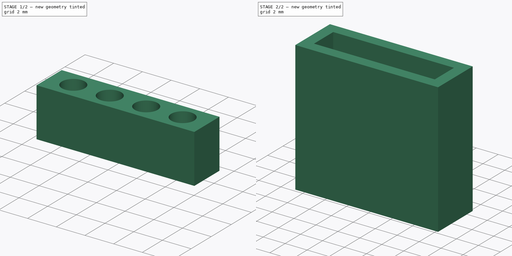
[diagram: build sequence overview — one tinted view per stage of 2, left to right]
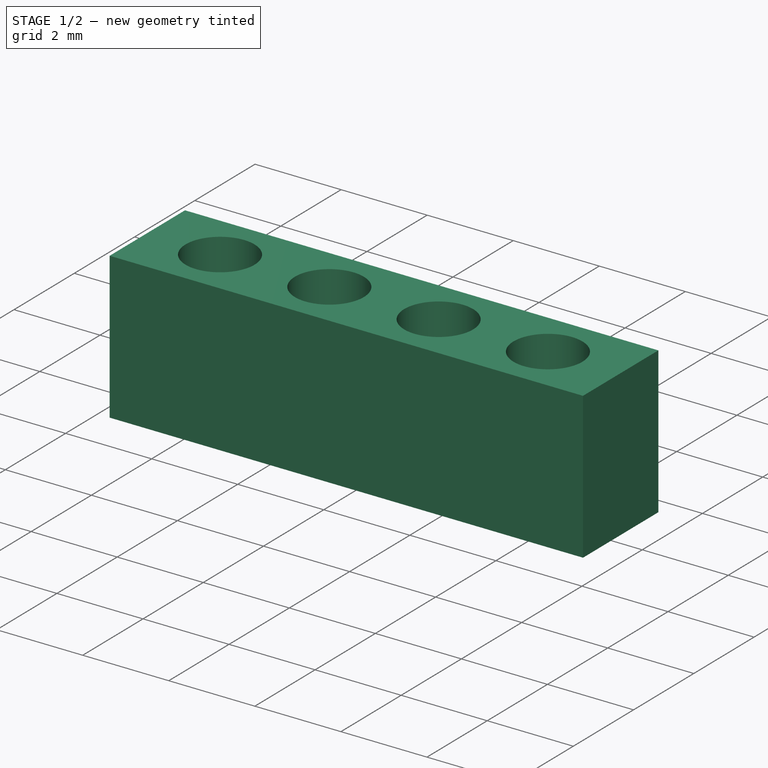
[diagram: stage 1 of 2 — iso view after this stage's code; geometry added in this stage tinted green]
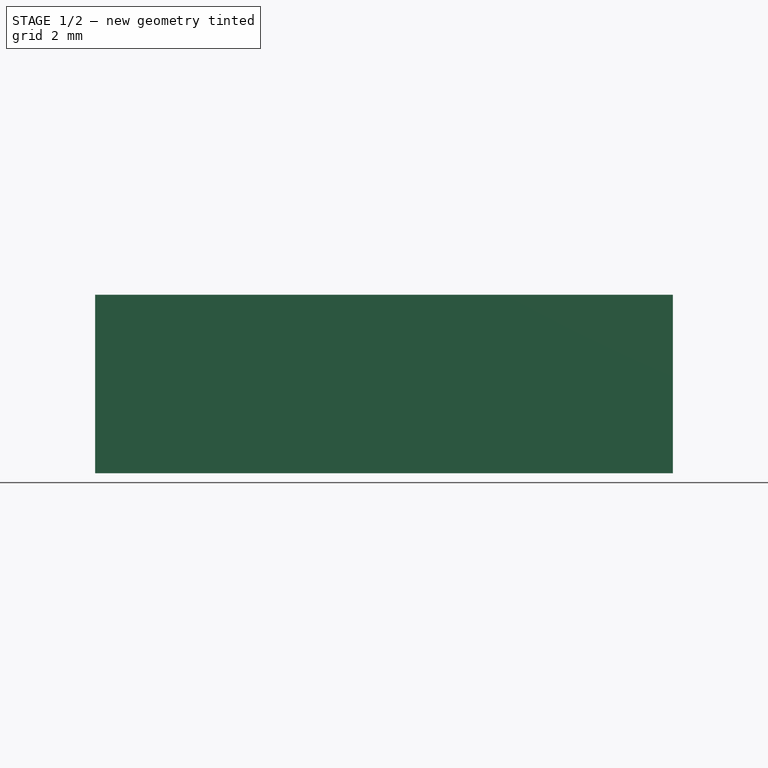
[diagram: stage 1 of 2 — front view after this stage's code; geometry added in this stage tinted green]
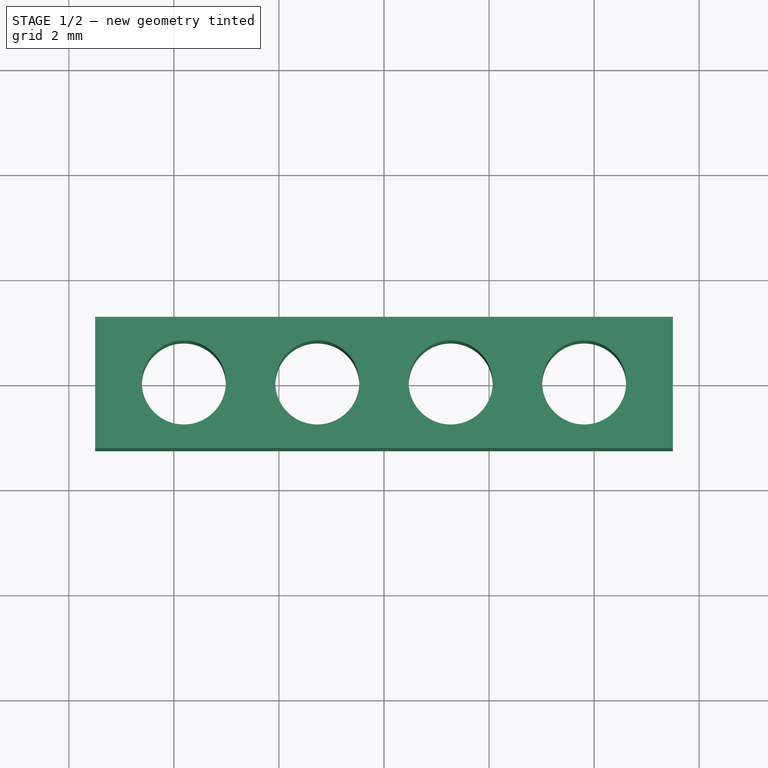
[diagram: stage 1 of 2 — top view after this stage's code; geometry added in this stage tinted green]
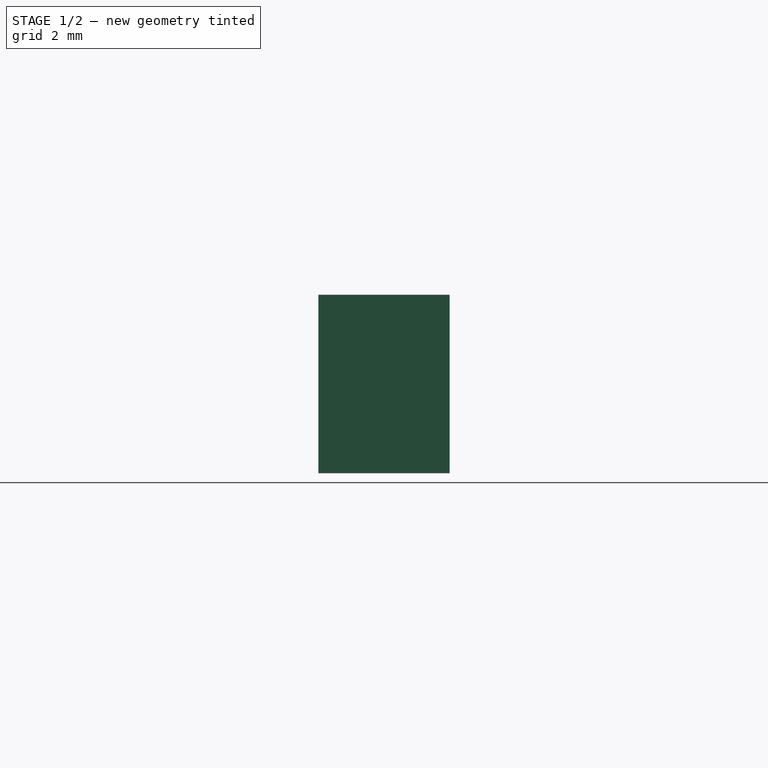
[diagram: stage 1 of 2 — right view after this stage's code; geometry added in this stage tinted green]
FCSTD DOCUMENT  (FreeCAD 0.20R29603 (Git))
Label: mir_oled
License: All rights reserved
LicenseURL: http://en.wikipedia.org/wiki/All_rights_reserved
objects: Sketcher::SketchObject×2, PartDesign::Pad×2, PartDesign::Body×1
note: 7 computed .brp shape members not serialized (recipe doc carries the construction recipe); baked Part::Feature solids carry a one-line shape summary decoded from their .brp

FEATURE [Sketcher::SketchObject] Sketch
  FullyConstrained = true
  MapMode = 5
  Support = -> [XY_Plane]
  sketch-geometry (8):
    g0: Circle CenterX=-1.27 CenterY=0 CenterZ=0 NormalX=0 NormalY=0 NormalZ=1 AngleXU=0 Radius=0.8
    g1: LineSegment StartX=-5.5 StartY=-1.25 StartZ=0 EndX=5.5 EndY=-1.25 EndZ=0
    g2: LineSegment StartX=5.5 StartY=-1.25 StartZ=0 EndX=5.5 EndY=1.25 EndZ=0
    g3: LineSegment StartX=5.5 StartY=1.25 StartZ=0 EndX=-5.5 EndY=1.25 EndZ=0
    g4: LineSegment StartX=-5.5 StartY=1.25 StartZ=0 EndX=-5.5 EndY=-1.25 EndZ=0
    g5: Circle CenterX=1.27 CenterY=0 CenterZ=0 NormalX=0 NormalY=0 NormalZ=1 AngleXU=0 Radius=0.8
    g6: Circle CenterX=3.81 CenterY=0 CenterZ=0 NormalX=0 NormalY=0 NormalZ=1 AngleXU=0 Radius=0.8
    g7: Circle CenterX=-3.81 CenterY=0 CenterZ=0 NormalX=0 NormalY=0 NormalZ=1 AngleXU=0 Radius=0.8
  constraints (22):
    c: Diameter(g0) = 1.6
    c: Coincident(g1,g2)
    c: Coincident(g2,g3)
    c: Coincident(g3,g4)
    c: Coincident(g4,g1)
    c: Horizontal(g3)
    c: Vertical(g2)
    c: DistanceX(g1,g1) = 11
    c: DistanceY(g4,g4) = 2.5
    c: Symmetric(g3,g1,g-1)
    c: Symmetric(g1,g1,g-2)
    c: DistanceX(g0,g-1) = 1.27
    c: PointOnObject(g5,g-1)
    c: PointOnObject(g6,g-1)
    c: PointOnObject(g7,g-1)
    c: Equal(g0,g5)
    c: Equal(g5,g6)
    c: Equal(g6,g7)
    c: DistanceX(g7,g0) = 2.54
    c: DistanceX(g0,g5) = 2.54
    c: DistanceX(g5,g6) = 2.54
    c: Horizontal(g0,g-1)
FEATURE [PartDesign::Pad] Pad
  Direction = (0,0,1)
  Length = 3.4
  Length2 = 10
  Profile = -> Sketch
  ReferenceAxis = -> Sketch [N_Axis]
  Type = 0
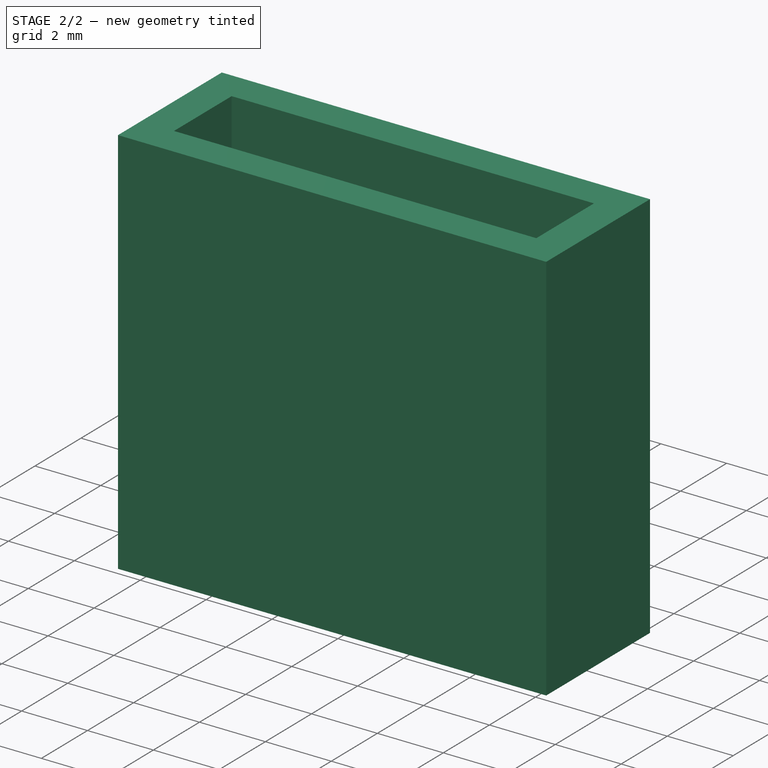
[diagram: stage 2 of 2 — iso view after this stage's code; geometry added in this stage tinted green]
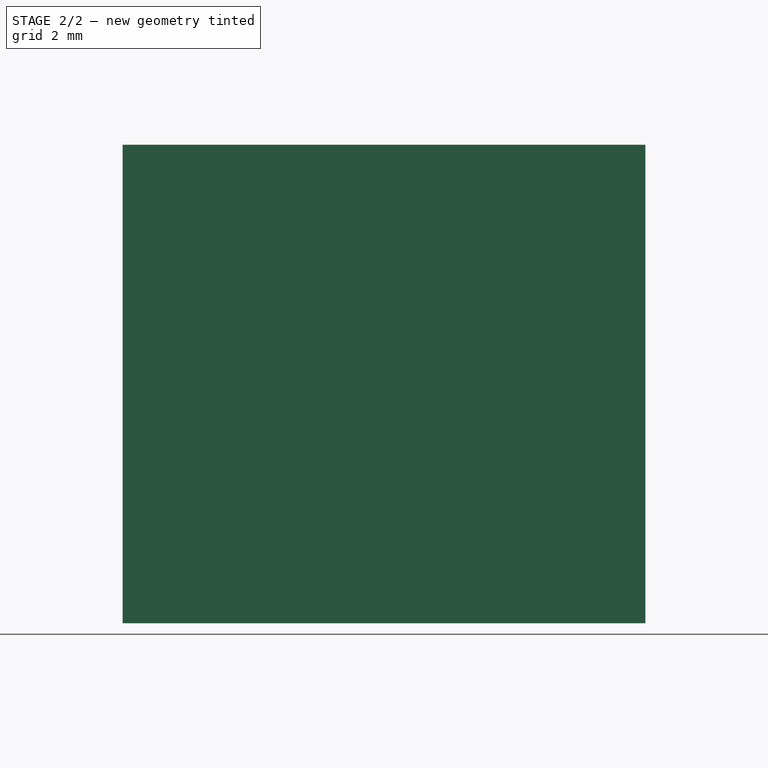
[diagram: stage 2 of 2 — front view after this stage's code; geometry added in this stage tinted green]
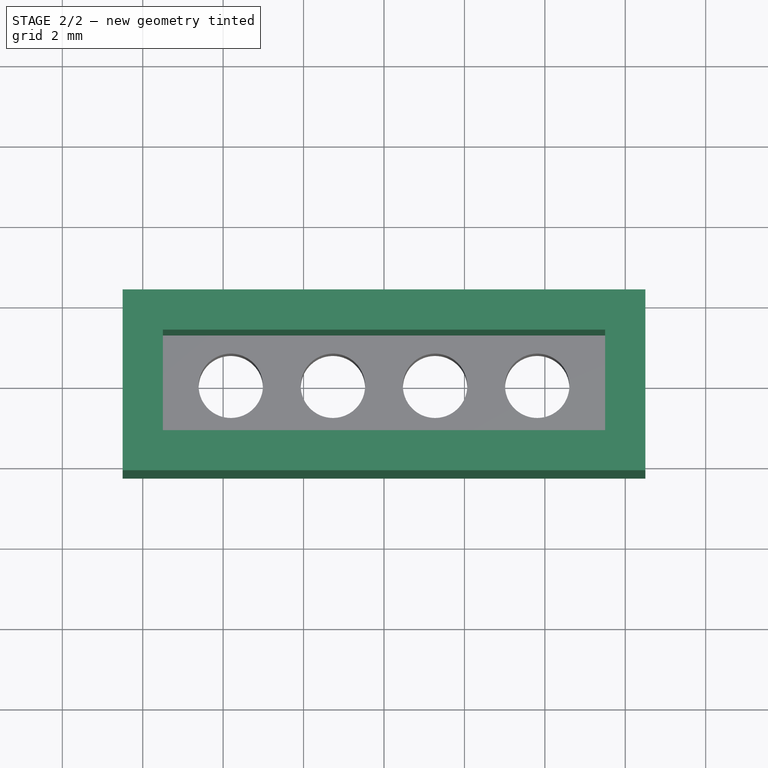
[diagram: stage 2 of 2 — top view after this stage's code; geometry added in this stage tinted green]
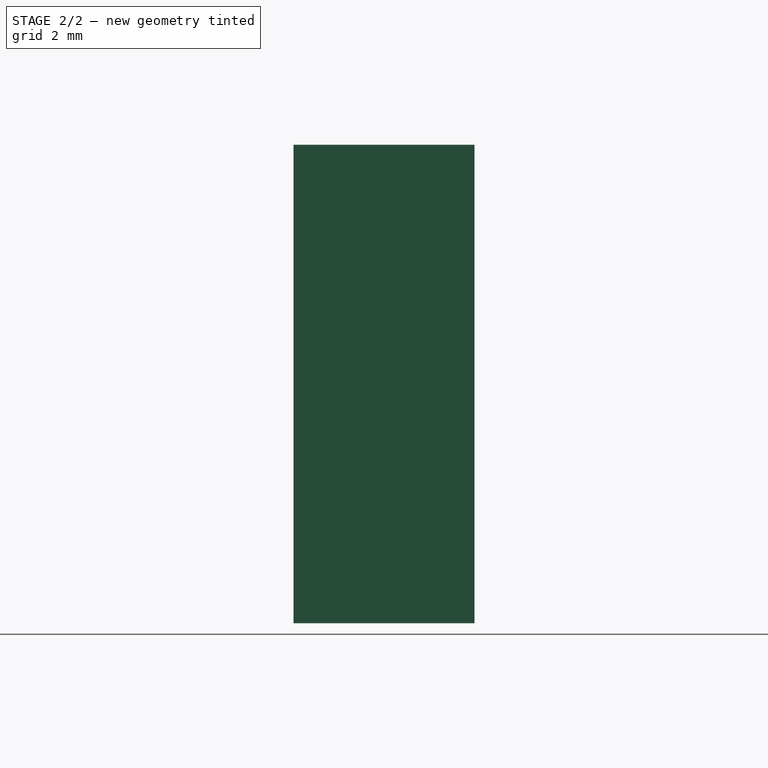
[diagram: stage 2 of 2 — right view after this stage's code; geometry added in this stage tinted green]
FEATURE [Sketcher::SketchObject] Sketch001
  ExternalGeometry = -> [Pad]
  FullyConstrained = true
  MapMode = 5
  Support = -> [XY_Plane]
  sketch-geometry (8):
    g0: LineSegment StartX=5.5 StartY=1.25 StartZ=0 EndX=-5.5 EndY=1.25 EndZ=0
    g1: LineSegment StartX=-5.5 StartY=1.25 StartZ=0 EndX=-5.5 EndY=-1.25 EndZ=0
    g2: LineSegment StartX=-5.5 StartY=-1.25 StartZ=0 EndX=5.5 EndY=-1.25 EndZ=0
    g3: LineSegment StartX=5.5 StartY=-1.25 StartZ=0 EndX=5.5 EndY=1.25 EndZ=0
    g4: LineSegment StartX=-6.5 StartY=2.25 StartZ=0 EndX=6.5 EndY=2.25 EndZ=0
    g5: LineSegment StartX=6.5 StartY=2.25 StartZ=0 EndX=6.5 EndY=-2.25 EndZ=0
    g6: LineSegment StartX=6.5 StartY=-2.25 StartZ=0 EndX=-6.5 EndY=-2.25 EndZ=0
    g7: LineSegment StartX=-6.5 StartY=-2.25 StartZ=0 EndX=-6.5 EndY=2.25 EndZ=0
  constraints (22):
    c: Coincident(g0,g1)
    c: Coincident(g1,g2)
    c: Coincident(g2,g3)
    c: Coincident(g3,g0)
    c: Horizontal(g0)
    c: Horizontal(g2)
    c: Vertical(g1)
    c: Vertical(g3)
    c: Coincident(g0,g-3)
    c: Coincident(g1,g-4)
    c: Coincident(g4,g5)
    c: Coincident(g5,g6)
    c: Coincident(g6,g7)
    c: Coincident(g7,g4)
    c: Horizontal(g4)
    c: Horizontal(g6)
    c: Vertical(g5)
    c: Vertical(g7)
    c: DistanceX(g4,g4) = 13
    c: DistanceY(g7,g7) = 4.5
    c: DistanceY(g0,g4) = 1
    c: DistanceX(g4,g0) = 1
FEATURE [PartDesign::Pad] Pad001
  BaseFeature = -> Pad
  Direction = (0,0,1)
  Length = 11.9
  Length2 = 10
  Profile = -> Sketch001
  ReferenceAxis = -> Sketch001 [N_Axis]
  Refine = true
  Type = 0
FEATURE [PartDesign::Body] Body
  Group = -> [Sketch,Pad,Sketch001,Pad001]
  Origin = -> Origin
  Tip = -> Pad001
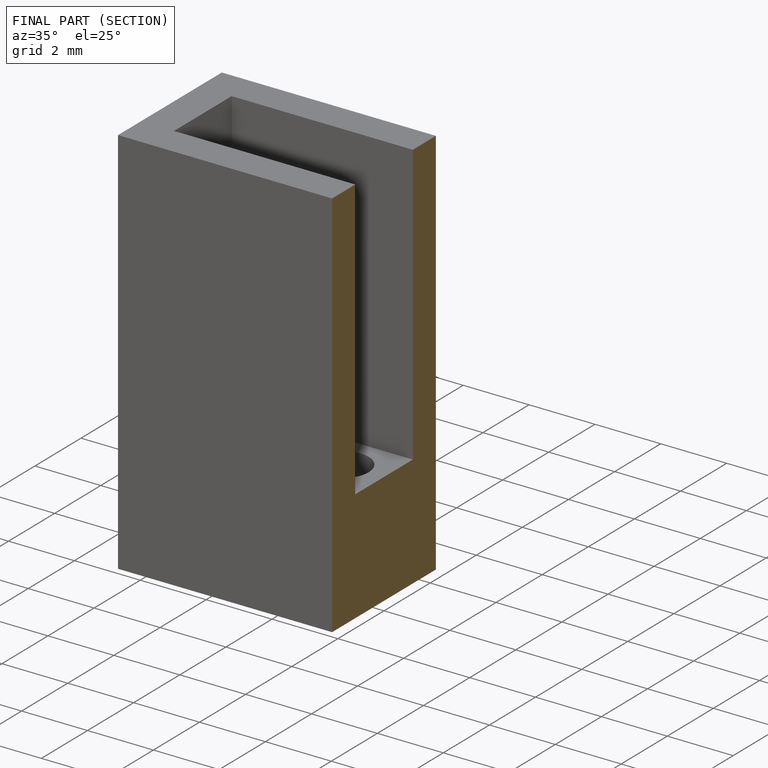
[diagram: finished part — half-section view (interior)]
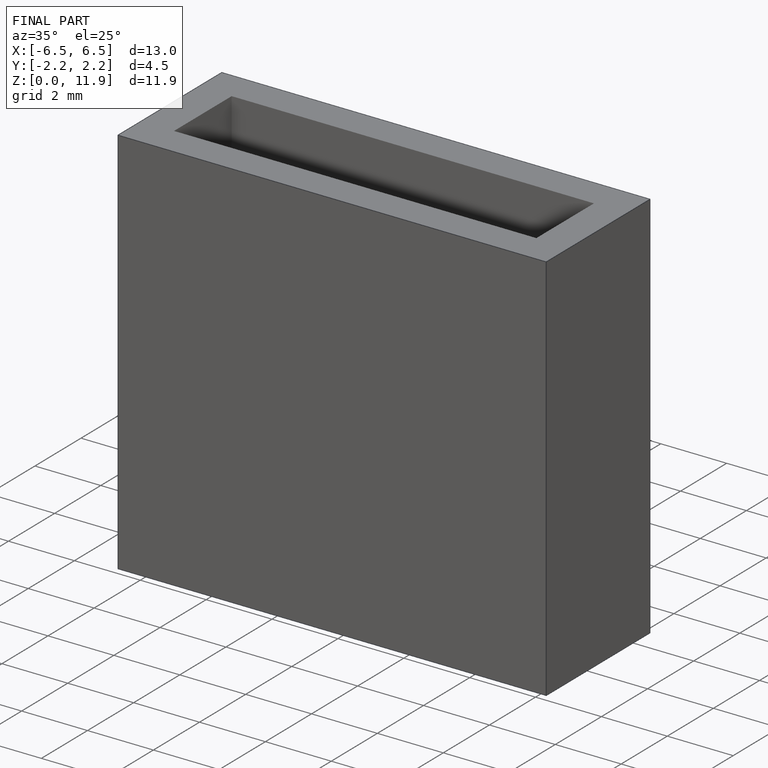
[diagram: finished part — iso view with bounding-box wireframe]
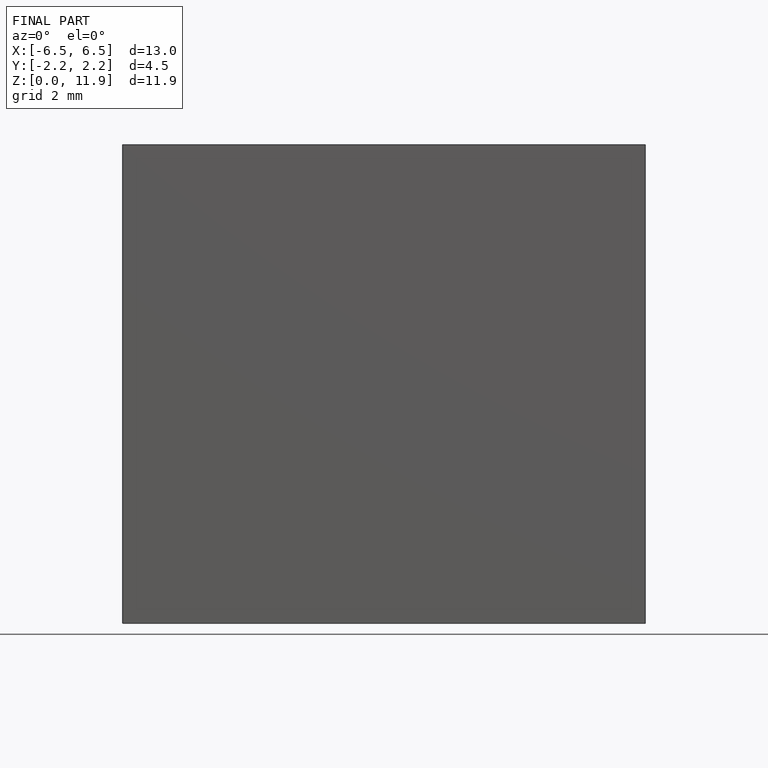
[diagram: finished part — front view with bounding-box wireframe]
